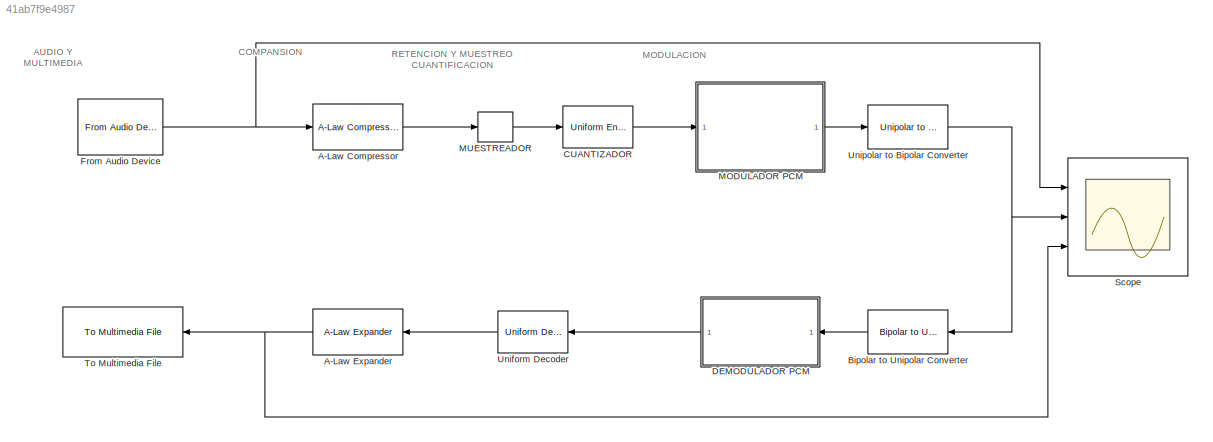
MODEL slx_41ab7f9e4987
KIND model
CONFIG AbsTol = auto
CONFIG EnableMultiTasking = on
CONFIG FixedStep = auto
CONFIG MaxStep = auto
CONFIG MinStep = auto
CONFIG RelTol = 1e-3
CONFIG SampleTimeConstraint = Unconstrained
CONFIG Solver = VariableStepAuto
CONFIG SolverName = VariableStepAuto
CONFIG StartTime = 0.0
CONFIG StopTime = 10
BLOCK [Reference] A-Law Compressor  REF=commsrccod2/A-Law
Compressor
  Ports = [1, 1]
  SourceBlock = commsrccod2/A-Law\nCompressor
  SourceType = A-Law Compressor
BLOCK [Reference] A-Law Expander  REF=commsrccod2/A-Law
Expander
  Ports = [1, 1]
  SourceBlock = commsrccod2/A-Law\nExpander
  SourceType = A-Law Expander
BLOCK [Reference] Bipolar to Unipolar Converter  REF=commutil2/Bipolar to
Unipolar
Converter
  Ports = [1, 1]
  SourceBlock = commutil2/Bipolar to\nUnipolar\nConverter
  SourceType = Bipolar to Unipolar Converter
BLOCK [Reference] CUANTIZADOR  REF=dspquant2/Uniform
Encoder
  Ports = [1, 1]
  SourceBlock = dspquant2/Uniform\nEncoder
  SourceType = Uniform Encoder
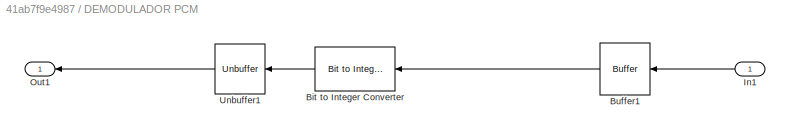
BLOCK [SubSystem] DEMODULADOR PCM
  Ports = [1, 1]
  RequestExecContextInheritance = off
  Variant = off
BLOCK [Reference] DEMODULADOR PCM/Bit to Integer Converter  REF=commutil2/Bit to Integer
Converter
  Ports = [1, 1]
  SourceBlock = commutil2/Bit to Integer\nConverter
  SourceType = Bit to Integer Converter
BLOCK [Buffer] DEMODULADOR PCM/Buffer1
  N = 3*8
  OutputFrames = off
  TreatMby1Signals = One channel
BLOCK [Inport] DEMODULADOR PCM/In1
  IconDisplay = Port number
BLOCK [Outport] DEMODULADOR PCM/Out1
  IconDisplay = Port number
BLOCK [Unbuffer] DEMODULADOR PCM/Unbuffer1
  Ports = [1, 1]
  SampleBasedProcessing = Same as frame based
BLOCK [Reference] From Audio Device  REF=dspobslib/From Audio
Device
  Ports = [0, 1]
  SourceBlock = dspobslib/From Audio\nDevice
  SourceType = From Audio Device
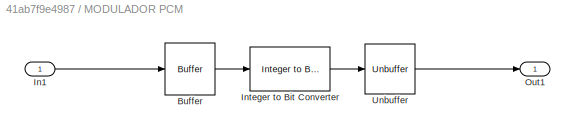
BLOCK [SubSystem] MODULADOR PCM
  Ports = [1, 1]
  RequestExecContextInheritance = off
  Variant = off
BLOCK [Buffer] MODULADOR PCM/Buffer
  N = 3
  OutputFrames = off
  TreatMby1Signals = One channel
BLOCK [Inport] MODULADOR PCM/In1
  IconDisplay = Port number
BLOCK [Reference] MODULADOR PCM/Integer to Bit Converter  REF=commutil2/Integer to Bit
Converter
  Ports = [1, 1]
  SourceBlock = commutil2/Integer to Bit\nConverter
  SourceType = Integer to Bit Converter
BLOCK [Outport] MODULADOR PCM/Out1
  IconDisplay = Port number
BLOCK [Unbuffer] MODULADOR PCM/Unbuffer
  Ports = [1, 1]
  SampleBasedProcessing = Same as frame based
BLOCK [ZeroOrderHold] MUESTREADOR
  SampleTime = 1/(8*4000)
BLOCK [Scope] Scope
  NumInputPorts = 3
  Ports = [3]
  ScopeSpecificationString = Simulink.scopes.TimeScopeBlockCfg('CurrentConfiguration', extmgr.ConfigurationSet(extmgr.Configuration('Core','General UI',true),extmgr.Configuration('Core','Source UI',true),extmgr.Configuration('Sources','WiredSimulink',true),extmgr.Configuration('Visuals','Time Domain',true,'SerializedDisplays',{struct('MinYLimReal','-1.25','MaxYLimReal','1.25','YLabelReal','','MinYLimMag','0.00000','MaxYLimMag...<+2755ch>
BLOCK [Reference] To Multimedia File  REF=dspvision/To Multimedia File
  Ports = [1]
  SourceBlock = dspvision/To Multimedia File
  SourceType = To Multimedia File
BLOCK [Reference] Uniform Decoder  REF=dspquant2/Uniform
Decoder
  Ports = [1, 1]
  SourceBlock = dspquant2/Uniform\nDecoder
  SourceType = Uniform Decoder
BLOCK [Reference] Unipolar to Bipolar Converter  REF=commutil2/Unipolar to
Bipolar
Converter
  Ports = [1, 1]
  SourceBlock = commutil2/Unipolar to\nBipolar\nConverter
  SourceType = Unipolar to Bipolar Converter
ANNOTATION (root): AUDIO Y MULTIMEDIA
ANNOTATION (root): COMPANSION
ANNOTATION (root): MODULACION
ANNOTATION (root): RETENCION Y MUESTREO CUANTIFICACION
LINE A-Law Compressor:1 -> MUESTREADOR:1
NET A-Law Expander:1 -> Scope:3, To Multimedia File:1
LINE Bipolar to Unipolar Converter:1 -> DEMODULADOR PCM:1
LINE CUANTIZADOR:1 -> MODULADOR PCM:1
LINE DEMODULADOR PCM/Bit to Integer Converter:1 -> DEMODULADOR PCM/Unbuffer1:1
LINE DEMODULADOR PCM/Buffer1:1 -> DEMODULADOR PCM/Bit to Integer Converter:1
LINE DEMODULADOR PCM/In1:1 -> DEMODULADOR PCM/Buffer1:1
LINE DEMODULADOR PCM/Unbuffer1:1 -> DEMODULADOR PCM/Out1:1
LINE DEMODULADOR PCM:1 -> Uniform Decoder:1
NET From Audio Device:1 -> A-Law Compressor:1, Scope:1
LINE MODULADOR PCM/Buffer:1 -> MODULADOR PCM/Integer to Bit Converter:1
LINE MODULADOR PCM/In1:1 -> MODULADOR PCM/Buffer:1
LINE MODULADOR PCM/Integer to Bit Converter:1 -> MODULADOR PCM/Unbuffer:1
LINE MODULADOR PCM/Unbuffer:1 -> MODULADOR PCM/Out1:1
LINE MODULADOR PCM:1 -> Unipolar to Bipolar Converter:1
LINE MUESTREADOR:1 -> CUANTIZADOR:1
LINE Uniform Decoder:1 -> A-Law Expander:1
NET Unipolar to Bipolar Converter:1 -> Bipolar to Unipolar Converter:1, Scope:2
note: NET lines group one-source signal fan-out (src -> all destinations, sorted); 1:1 wires keep LINE
